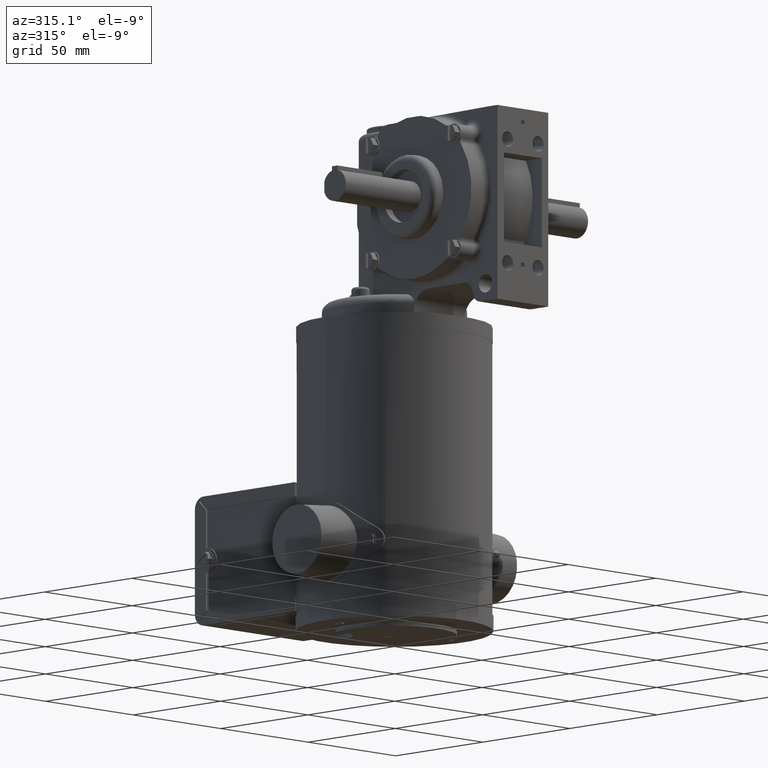
[diagram: clean part render]
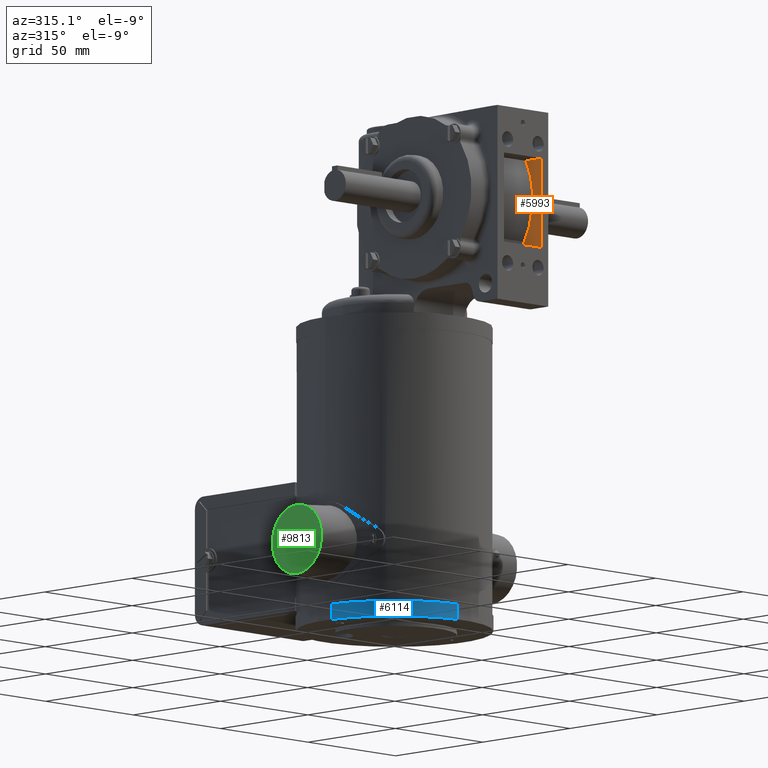
[diagram: same view with three faces highlighted in distinct colors, each labeled with its STEP entity id]
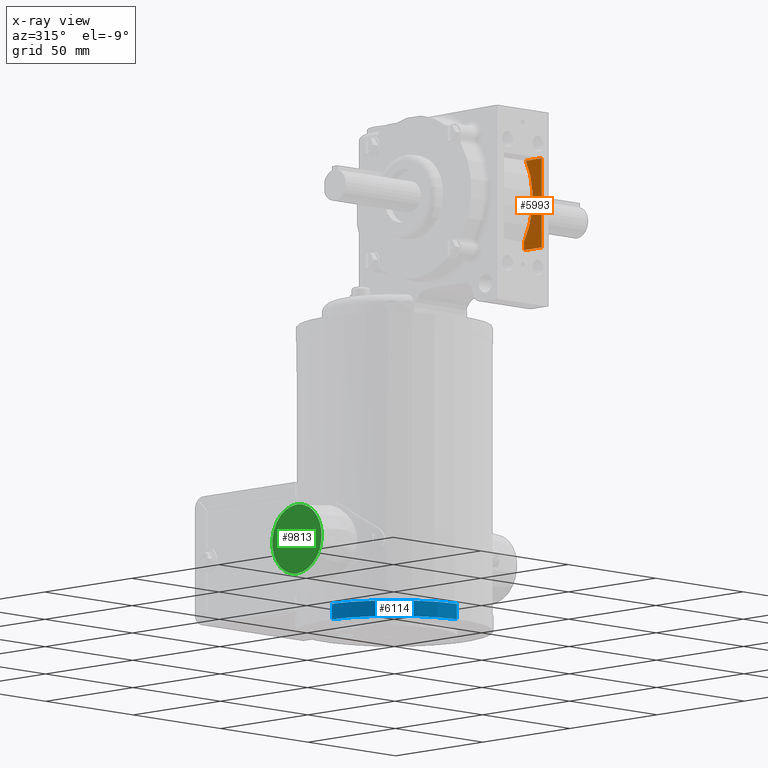
[diagram: x-ray of the same camera — body ghosted, the three highlighted faces saturated]
A machine part, auxiliary view with three faces highlighted in distinct colors.
The next image is the same camera in x-ray (body ghosted, the three faces saturated) — at least one of them is partly hidden behind the body in this view.
Their STEP definitions:

[orange] entity #5993 — the highlighted planar face has unit normal (-1, 0, 0).
#323 = CARTESIAN_POINT ( 'NONE',  ( 0.4249999999999999900, -2.499999999999999600, -0.5164999999999998500 ) ) ;
#654 = DIRECTION ( 'NONE',  ( 0.0000000000000000000, 0.0000000000000000000, 1.000000000000000000 ) ) ;
#1246 = AXIS2_PLACEMENT_3D ( 'NONE', #23895, #21778, #654 ) ;
#2288 = VECTOR ( 'NONE', #3954, 39.37007874015748100 ) ;
#2305 = ORIENTED_EDGE ( 'NONE', *, *, #9377, .T. ) ;
#2591 = VERTEX_POINT ( 'NONE', #26194 ) ;
#3954 = DIRECTION ( 'NONE',  ( 0.0000000000000000000, 0.0000000000000000000, -1.000000000000000000 ) ) ;
#4192 = ORIENTED_EDGE ( 'NONE', *, *, #14915, .F. ) ;
#4655 = FACE_OUTER_BOUND ( 'NONE', #24803, .T. ) ;
#5993 = ADVANCED_FACE ( 'NONE', ( #4655 ), #26021, .T. ) ;
#6199 = ORIENTED_EDGE ( 'NONE', *, *, #24674, .F. ) ;
#7286 = VECTOR ( 'NONE', #23167, 39.37007874015748100 ) ;
#7325 = CARTESIAN_POINT ( 'NONE',  ( 0.4249999999999999900, -2.540552327007745200, 0.9235000000000001000 ) ) ;
#7462 = VERTEX_POINT ( 'NONE', #323 ) ;
#7656 = VERTEX_POINT ( 'NONE', #7325 ) ;
#8729 = CARTESIAN_POINT ( 'NONE',  ( 0.4249999999999999900, -1.385999999999999900, 0.3056010000000004000 ) ) ;
#9300 = CARTESIAN_POINT ( 'NONE',  ( 0.4249999999999999900, -2.899999999999999500, -0.5164999999999998500 ) ) ;
#9377 = EDGE_CURVE ( 'NONE', #22455, #7462, #19848, .T. ) ;
#10662 = ORIENTED_EDGE ( 'NONE', *, *, #22821, .F. ) ;
#10872 = DIRECTION ( 'NONE',  ( 0.0000000000000000000, 0.0000000000000000000, 1.000000000000000000 ) ) ;
#11336 = EDGE_CURVE ( 'NONE', #7462, #14491, #17239, .T. ) ;
#11559 = VECTOR ( 'NONE', #15373, 39.37007874015748100 ) ;
#12410 = CARTESIAN_POINT ( 'NONE',  ( 0.4249999999999999900, -2.499999999999999600, 0.0000000000000000000 ) ) ;
#14491 = VERTEX_POINT ( 'NONE', #9300 ) ;
#14915 = EDGE_CURVE ( 'NONE', #22455, #7656, #25293, .T. ) ;
#15373 = DIRECTION ( 'NONE',  ( -0.0000000000000000000, -1.000000000000000000, -0.0000000000000000000 ) ) ;
#17239 = LINE ( 'NONE', #21641, #11559 ) ;
#17278 = DIRECTION ( 'NONE',  ( 0.0000000000000000000, 0.0000000000000000000, -1.000000000000000000 ) ) ;
#17446 = VECTOR ( 'NONE', #17278, 39.37007874015748100 ) ;
#18478 = ORIENTED_EDGE ( 'NONE', *, *, #11336, .T. ) ;
#19268 = LINE ( 'NONE', #21046, #7286 ) ;
#19368 = CARTESIAN_POINT ( 'NONE',  ( 0.4249999999999999900, -2.899999999999999500, 0.0000000000000000000 ) ) ;
#19848 = LINE ( 'NONE', #12410, #2288 ) ;
#21046 = CARTESIAN_POINT ( 'NONE',  ( 0.4249999999999999900, -2.499999999999999600, 0.9235000000000001000 ) ) ;
#21641 = CARTESIAN_POINT ( 'NONE',  ( 0.4249999999999999900, -2.499999999999999600, -0.5164999999999998500 ) ) ;
#21778 = DIRECTION ( 'NONE',  ( -1.000000000000000000, 0.0000000000000000000, 0.0000000000000000000 ) ) ;
#21926 = AXIS2_PLACEMENT_3D ( 'NONE', #8729, #23564, #10872 ) ;
#22455 = VERTEX_POINT ( 'NONE', #25870 ) ;
#22821 = EDGE_CURVE ( 'NONE', #7656, #2591, #19268, .T. ) ;
#23167 = DIRECTION ( 'NONE',  ( -0.0000000000000000000, -1.000000000000000000, -0.0000000000000000000 ) ) ;
#23564 = DIRECTION ( 'NONE',  ( -1.000000000000000000, 0.0000000000000000000, 0.0000000000000000000 ) ) ;
#23895 = CARTESIAN_POINT ( 'NONE',  ( 0.4249999999999999900, -2.499999999999999600, 0.0000000000000000000 ) ) ;
#24674 = EDGE_CURVE ( 'NONE', #2591, #14491, #24997, .T. ) ;
#24803 = EDGE_LOOP ( 'NONE', ( #4192, #2305, #18478, #6199, #10662 ) ) ;
#24997 = LINE ( 'NONE', #19368, #17446 ) ;
#25293 = CIRCLE ( 'NONE', #21926, 1.309499999999999900 ) ;
#25870 = CARTESIAN_POINT ( 'NONE',  ( 0.4249999999999999900, -2.499999999999999600, -0.3827261387937567200 ) ) ;
#26021 = PLANE ( 'NONE',  #1246 ) ;
#26194 = CARTESIAN_POINT ( 'NONE',  ( 0.4249999999999999900, -2.899999999999999500, 0.9235000000000001000 ) ) ;

[blue] entity #6114 — the highlighted cylindrical surface (partial cylindrical patch) has radius 40.0837 mm, axis along (0, 0, 1).
#569 = VERTEX_POINT ( 'NONE', #24258 ) ;
#856 = DIRECTION ( 'NONE',  ( 0.0000000000000000000, 0.0000000000000000000, 1.000000000000000000 ) ) ;
#1017 = VECTOR ( 'NONE', #856, 39.37007874015748100 ) ;
#1478 = EDGE_CURVE ( 'NONE', #17672, #569, #14021, .T. ) ;
#1854 = LINE ( 'NONE', #15178, #13144 ) ;
#1925 = DIRECTION ( 'NONE',  ( 1.000000000000000000, 0.0000000000000000000, 0.0000000000000000000 ) ) ;
#1989 = FACE_OUTER_BOUND ( 'NONE', #7555, .T. ) ;
#2008 = VERTEX_POINT ( 'NONE', #13031 ) ;
#2179 = CARTESIAN_POINT ( 'NONE',  ( 0.0000000000000000000, -1.365923996832131600E-016, -6.184999999999999600 ) ) ;
#2436 = DIRECTION ( 'NONE',  ( 0.0000000000000000000, 0.0000000000000000000, 1.000000000000000000 ) ) ;
#3132 = DIRECTION ( 'NONE',  ( 1.000000000000000000, 0.0000000000000000000, 0.0000000000000000000 ) ) ;
#4316 = DIRECTION ( 'NONE',  ( 1.000000000000000000, 0.0000000000000000000, 0.0000000000000000000 ) ) ;
#5358 = CARTESIAN_POINT ( 'NONE',  ( -0.1596859730846889300, -1.569999999999998700, -6.434999999999999600 ) ) ;
#6114 = ADVANCED_FACE ( 'NONE', ( #1989 ), #26824, .T. ) ;
#7312 = DIRECTION ( 'NONE',  ( 0.0000000000000000000, 0.0000000000000000000, 1.000000000000000000 ) ) ;
#7455 = EDGE_CURVE ( 'NONE', #2008, #17672, #1854, .T. ) ;
#7555 = EDGE_LOOP ( 'NONE', ( #19630, #26992, #21711, #14529 ) ) ;
#8745 = CIRCLE ( 'NONE', #15972, 1.578100000000000100 ) ;
#12321 = LINE ( 'NONE', #13574, #1017 ) ;
#12519 = VERTEX_POINT ( 'NONE', #5358 ) ;
#13031 = CARTESIAN_POINT ( 'NONE',  ( -1.570000000000000300, -0.1596859730846753900, -6.434999999999999600 ) ) ;
#13144 = VECTOR ( 'NONE', #2436, 39.37007874015748100 ) ;
#13574 = CARTESIAN_POINT ( 'NONE',  ( -0.1596859730846889300, -1.569999999999998700, -6.434999999999999600 ) ) ;
#14021 = CIRCLE ( 'NONE', #23114, 1.578100000000000100 ) ;
#14529 = ORIENTED_EDGE ( 'NONE', *, *, #20259, .T. ) ;
#14643 = DIRECTION ( 'NONE',  ( -0.0000000000000000000, 0.0000000000000000000, 1.000000000000000000 ) ) ;
#15178 = CARTESIAN_POINT ( 'NONE',  ( -1.570000000000000300, -0.1596859730846753900, -6.434999999999999600 ) ) ;
#15972 = AXIS2_PLACEMENT_3D ( 'NONE', #27284, #14643, #1925 ) ;
#17038 = DIRECTION ( 'NONE',  ( -0.0000000000000000000, 0.0000000000000000000, 1.000000000000000000 ) ) ;
#17672 = VERTEX_POINT ( 'NONE', #26496 ) ;
#18328 = AXIS2_PLACEMENT_3D ( 'NONE', #20016, #7312, #3132 ) ;
#19630 = ORIENTED_EDGE ( 'NONE', *, *, #1478, .F. ) ;
#20016 = CARTESIAN_POINT ( 'NONE',  ( 0.0000000000000000000, -1.365923996832131600E-016, -6.434999999999999600 ) ) ;
#20259 = EDGE_CURVE ( 'NONE', #12519, #569, #12321, .T. ) ;
#21711 = ORIENTED_EDGE ( 'NONE', *, *, #25087, .T. ) ;
#23114 = AXIS2_PLACEMENT_3D ( 'NONE', #2179, #17038, #4316 ) ;
#24258 = CARTESIAN_POINT ( 'NONE',  ( -0.1596859730846889300, -1.569999999999998700, -6.184999999999999600 ) ) ;
#25087 = EDGE_CURVE ( 'NONE', #2008, #12519, #8745, .T. ) ;
#26496 = CARTESIAN_POINT ( 'NONE',  ( -1.570000000000000300, -0.1596859730846753900, -6.184999999999999600 ) ) ;
#26824 = CYLINDRICAL_SURFACE ( 'NONE', #18328, 1.578100000000000100 ) ;
#26992 = ORIENTED_EDGE ( 'NONE', *, *, #7455, .F. ) ;
#27284 = CARTESIAN_POINT ( 'NONE',  ( 0.0000000000000000000, -1.365923996832131600E-016, -6.434999999999999600 ) ) ;

[green] entity #9813 — the highlighted planar face has unit normal (-1, 0, 0).
#531 = DIRECTION ( 'NONE',  ( 0.0000000000000000000, 0.0000000000000000000, 1.000000000000000000 ) ) ;
#2408 = EDGE_CURVE ( 'NONE', #26263, #7069, #21155, .T. ) ;
#2569 = PLANE ( 'NONE',  #8314 ) ;
#3328 = DIRECTION ( 'NONE',  ( -1.000000000000000000, 0.0000000000000000000, 0.0000000000000000000 ) ) ;
#4306 = CARTESIAN_POINT ( 'NONE',  ( -2.195000000000000300, 0.001166868795999381200, -5.190000000000000400 ) ) ;
#4895 = ORIENTED_EDGE ( 'NONE', *, *, #2408, .T. ) ;
#6424 = DIRECTION ( 'NONE',  ( 0.0000000000000000000, 0.0000000000000000000, 1.000000000000000000 ) ) ;
#7069 = VERTEX_POINT ( 'NONE', #13779 ) ;
#8314 = AXIS2_PLACEMENT_3D ( 'NONE', #25907, #13256, #531 ) ;
#8586 = FACE_OUTER_BOUND ( 'NONE', #22322, .T. ) ;
#9708 = ORIENTED_EDGE ( 'NONE', *, *, #18804, .T. ) ;
#9813 = ADVANCED_FACE ( 'NONE', ( #8586 ), #2569, .T. ) ;
#13256 = DIRECTION ( 'NONE',  ( -1.000000000000000000, 0.0000000000000000000, 0.0000000000000000000 ) ) ;
#13779 = CARTESIAN_POINT ( 'NONE',  ( -2.195000000000000300, 0.001166868795999381200, -4.632180414703702500 ) ) ;
#16067 = CARTESIAN_POINT ( 'NONE',  ( -2.195000000000000300, 0.001166868795999381200, -5.190000000000000400 ) ) ;
#18200 = DIRECTION ( 'NONE',  ( 0.0000000000000000000, 0.0000000000000000000, 1.000000000000000000 ) ) ;
#18440 = AXIS2_PLACEMENT_3D ( 'NONE', #16067, #3328, #18200 ) ;
#18564 = AXIS2_PLACEMENT_3D ( 'NONE', #4306, #19140, #6424 ) ;
#18804 = EDGE_CURVE ( 'NONE', #7069, #26263, #20014, .T. ) ;
#19140 = DIRECTION ( 'NONE',  ( -1.000000000000000000, 0.0000000000000000000, 0.0000000000000000000 ) ) ;
#20014 = CIRCLE ( 'NONE', #18440, 0.5578195852962978300 ) ;
#21155 = CIRCLE ( 'NONE', #18564, 0.5578195852962978300 ) ;
#22322 = EDGE_LOOP ( 'NONE', ( #9708, #4895 ) ) ;
#23422 = CARTESIAN_POINT ( 'NONE',  ( -2.195000000000000300, 0.001166868795999308700, -5.747819585296297400 ) ) ;
#25907 = CARTESIAN_POINT ( 'NONE',  ( -2.195000000000000300, 0.0000000000000000000, 0.0000000000000000000 ) ) ;
#26263 = VERTEX_POINT ( 'NONE', #23422 ) ;